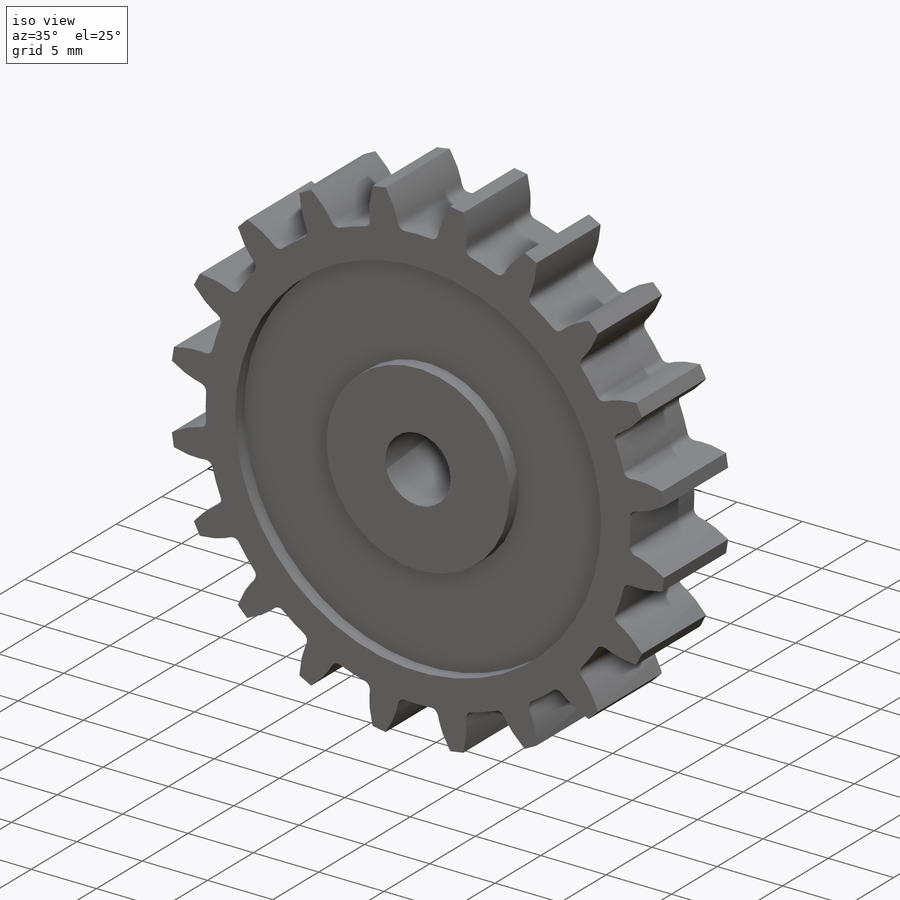
[diagram: iso view]
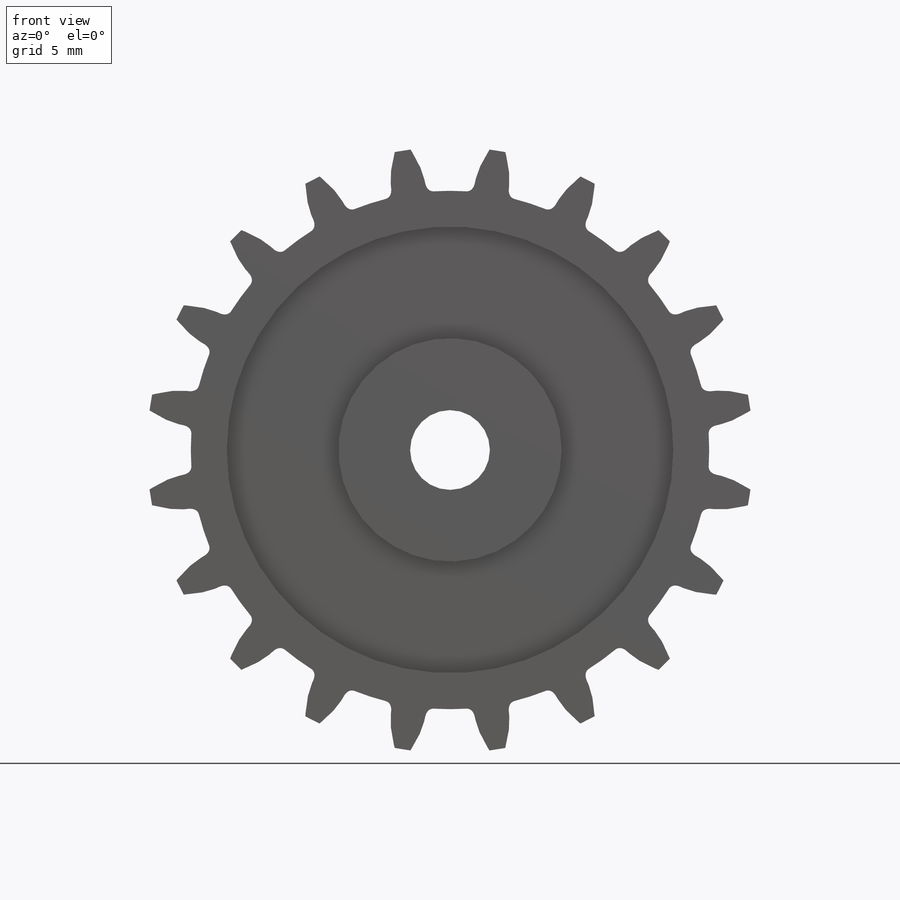
[diagram: front view]
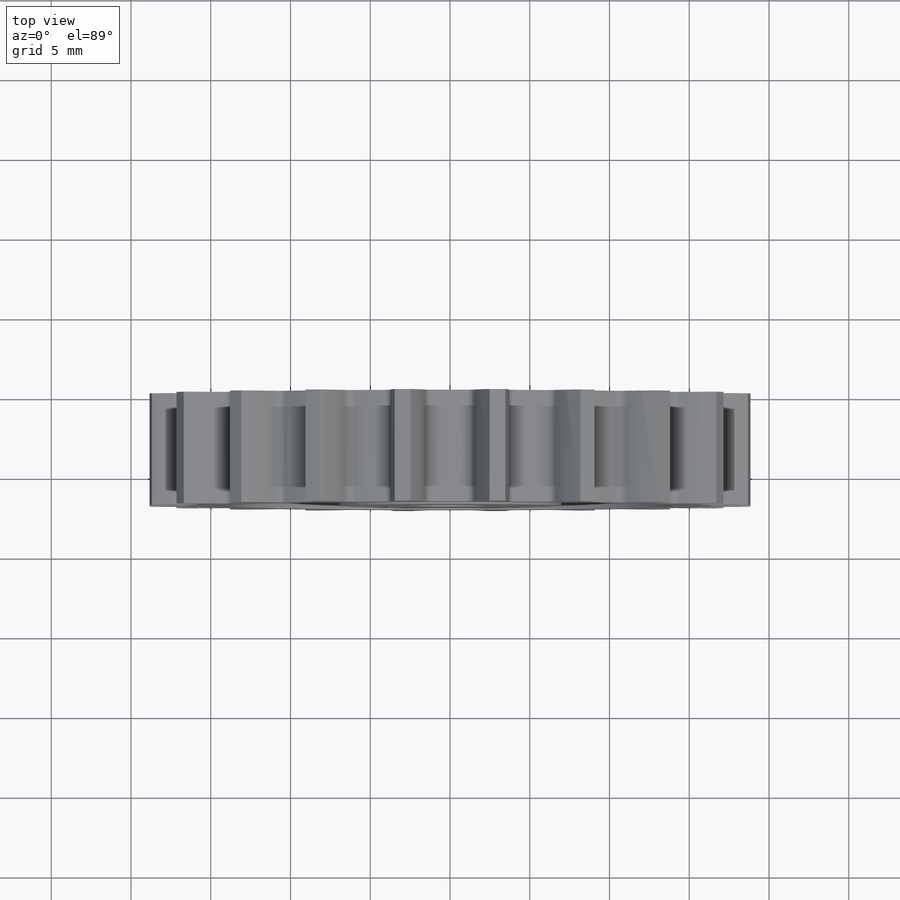
[diagram: top view]
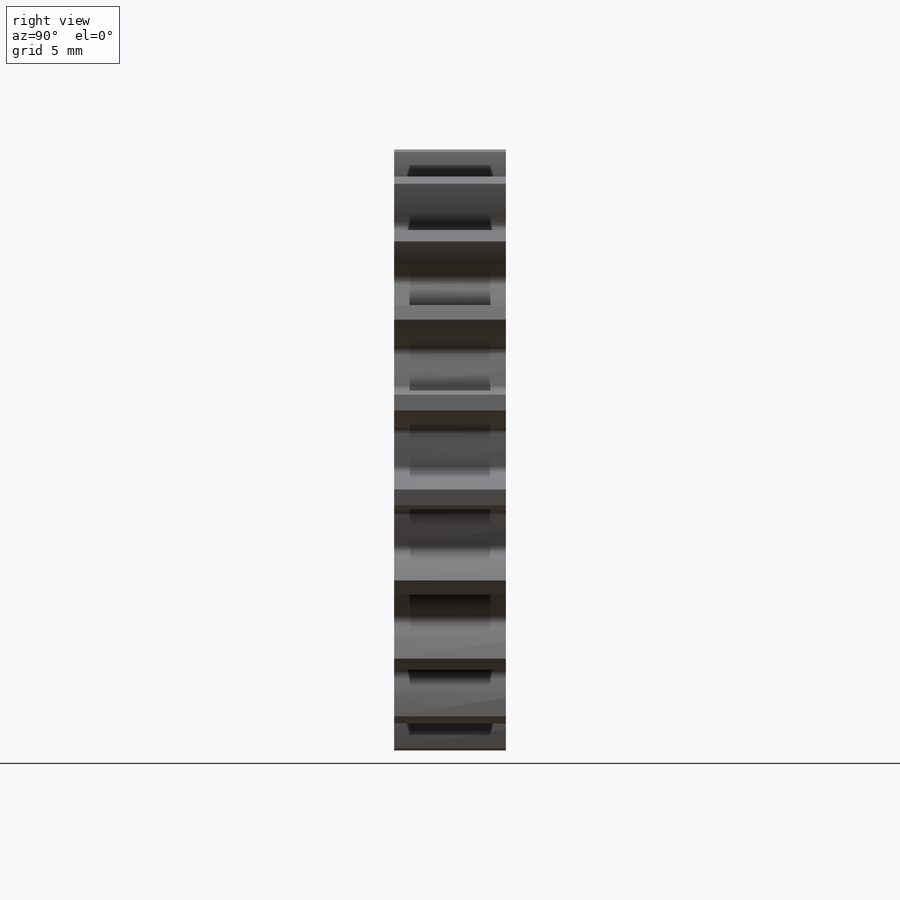
[diagram: right view]
SOLIDWORKS PART (.sldprt)
format: sldprt  version: not decoded by parser v0  size: 379,904 bytes
history: native  units: mm
features: plane x3, sketch x3, cut_extrude x2, material x1, extrude x1 (+8 scaffold rows collapsed)
feature tree (18):
  scaffold x8  (default folders/planes/origin — collapsed)
  material  "Material <sin especificar>"
  plane  "Alzado"
  plane  "Planta"
  plane  "Vista lateral"
  sketch  "Croquis1"  dims[c1.D2=28.0mm c1.D3=38.0mm c1.D4=32.5mm c1.D5=19.0mm c2.D2=28.0mm c2.D1=38.0mm c2.D3=32.5mm c2.D9=5.0mm c3.D3=~22.987705mm c4.D3=45.0deg c4.D5=0.5mm c4.D6=1.5mm c4.D7=1.5mm c4.D1=0.0mm c4.D8=20.0]
  extrude  "Saliente-Extruir1"  Depth=7mm
  sketch  "Croquis2"  dims[D1=28.0mm D2=14.0mm]
  cut_extrude  "Cortar-Extruir1"  Depth=1mm
  sketch  "Croquis3"  dims[D1=0.0mm D2=0.0mm]
  cut_extrude  "Cortar-Extruir2"  Depth=1mm
decode coverage: 6 of 6 modeling features carry decoded parameters
note: ~ marks probable driven/reference dimensions
note: suppression state not decoded; provenance and decode notes live in map.json
